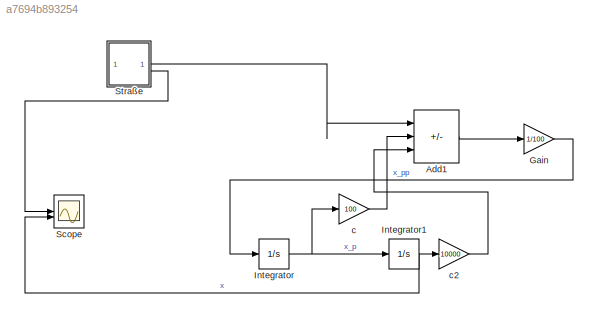
MODEL slx_a7694b893254
KIND model
CONFIG AbsTol = auto
CONFIG EnableMultiTasking = off
CONFIG FixedStep = auto
CONFIG MaxStep = auto
CONFIG MinStep = auto
CONFIG RelTol = 1e-3
CONFIG SampleTimeConstraint = Unconstrained
CONFIG SolverName = VariableStepAuto
CONFIG StartTime = 0.0
CONFIG StopTime = 10.0
BLOCK [Sum] Add1
  IconShape = rectangular
  Inputs = |+--
BLOCK [Gain] Gain
  Gain = 1/100
BLOCK [Integrator] Integrator
BLOCK [Integrator] Integrator1
BLOCK [Scope] Scope
  Floating = off
  NumInputPorts = 2
  ScopeSpecificationString = Simulink.scopes.TimeScopeBlockCfg('CurrentConfiguration', extmgr.ConfigurationSet(extmgr.Configuration('Core','General UI',true),extmgr.Configuration('Core','Source UI',true),extmgr.Configuration('Sources','WiredSimulink',true),extmgr.Configuration('Visuals','Time Domain',true,'SerializedDisplays',{struct('MinYLimReal','-0.12541','MaxYLimReal','0.12628','YLabelReal','','MinYLimMag','0.00000','MaxY...<+1389ch>
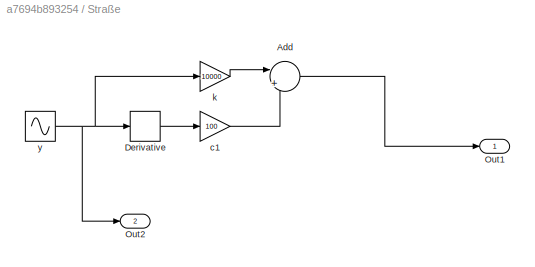
BLOCK [SubSystem] Straße
BLOCK [Sum] Straße/Add
  Inputs = |++
BLOCK [Derivative] Straße/Derivative
BLOCK [Outport] Straße/Out1
BLOCK [Outport] Straße/Out2
  Port = 2
BLOCK [Gain] Straße/c1
  Gain = 100
BLOCK [Gain] Straße/k
  Gain = 10000
BLOCK [Sin] Straße/y
  Amplitude = 0.1
  Frequency = 0.5
  SampleTime = 0
BLOCK [Gain] c
  Gain = 100
BLOCK [Gain] c2
  Gain = 10000
LINE Add1:1 -> Gain:1
LINE Gain:1 -> Integrator:1
NET Integrator1:1 -> Scope:2, c2:1
NET Integrator:1 -> Integrator1:1, c:1
LINE Straße/Add:1 -> Straße/Out1:1
LINE Straße/Derivative:1 -> Straße/c1:1
LINE Straße/c1:1 -> Straße/Add:2
LINE Straße/k:1 -> Straße/Add:1
NET Straße/y:1 -> Straße/Derivative:1, Straße/Out2:1, Straße/k:1
LINE Straße:1 -> Add1:1
LINE Straße:2 -> Scope:1
LINE c2:1 -> Add1:3
LINE c:1 -> Add1:2
note: NET lines group one-source signal fan-out (src -> all destinations, sorted); 1:1 wires keep LINE
